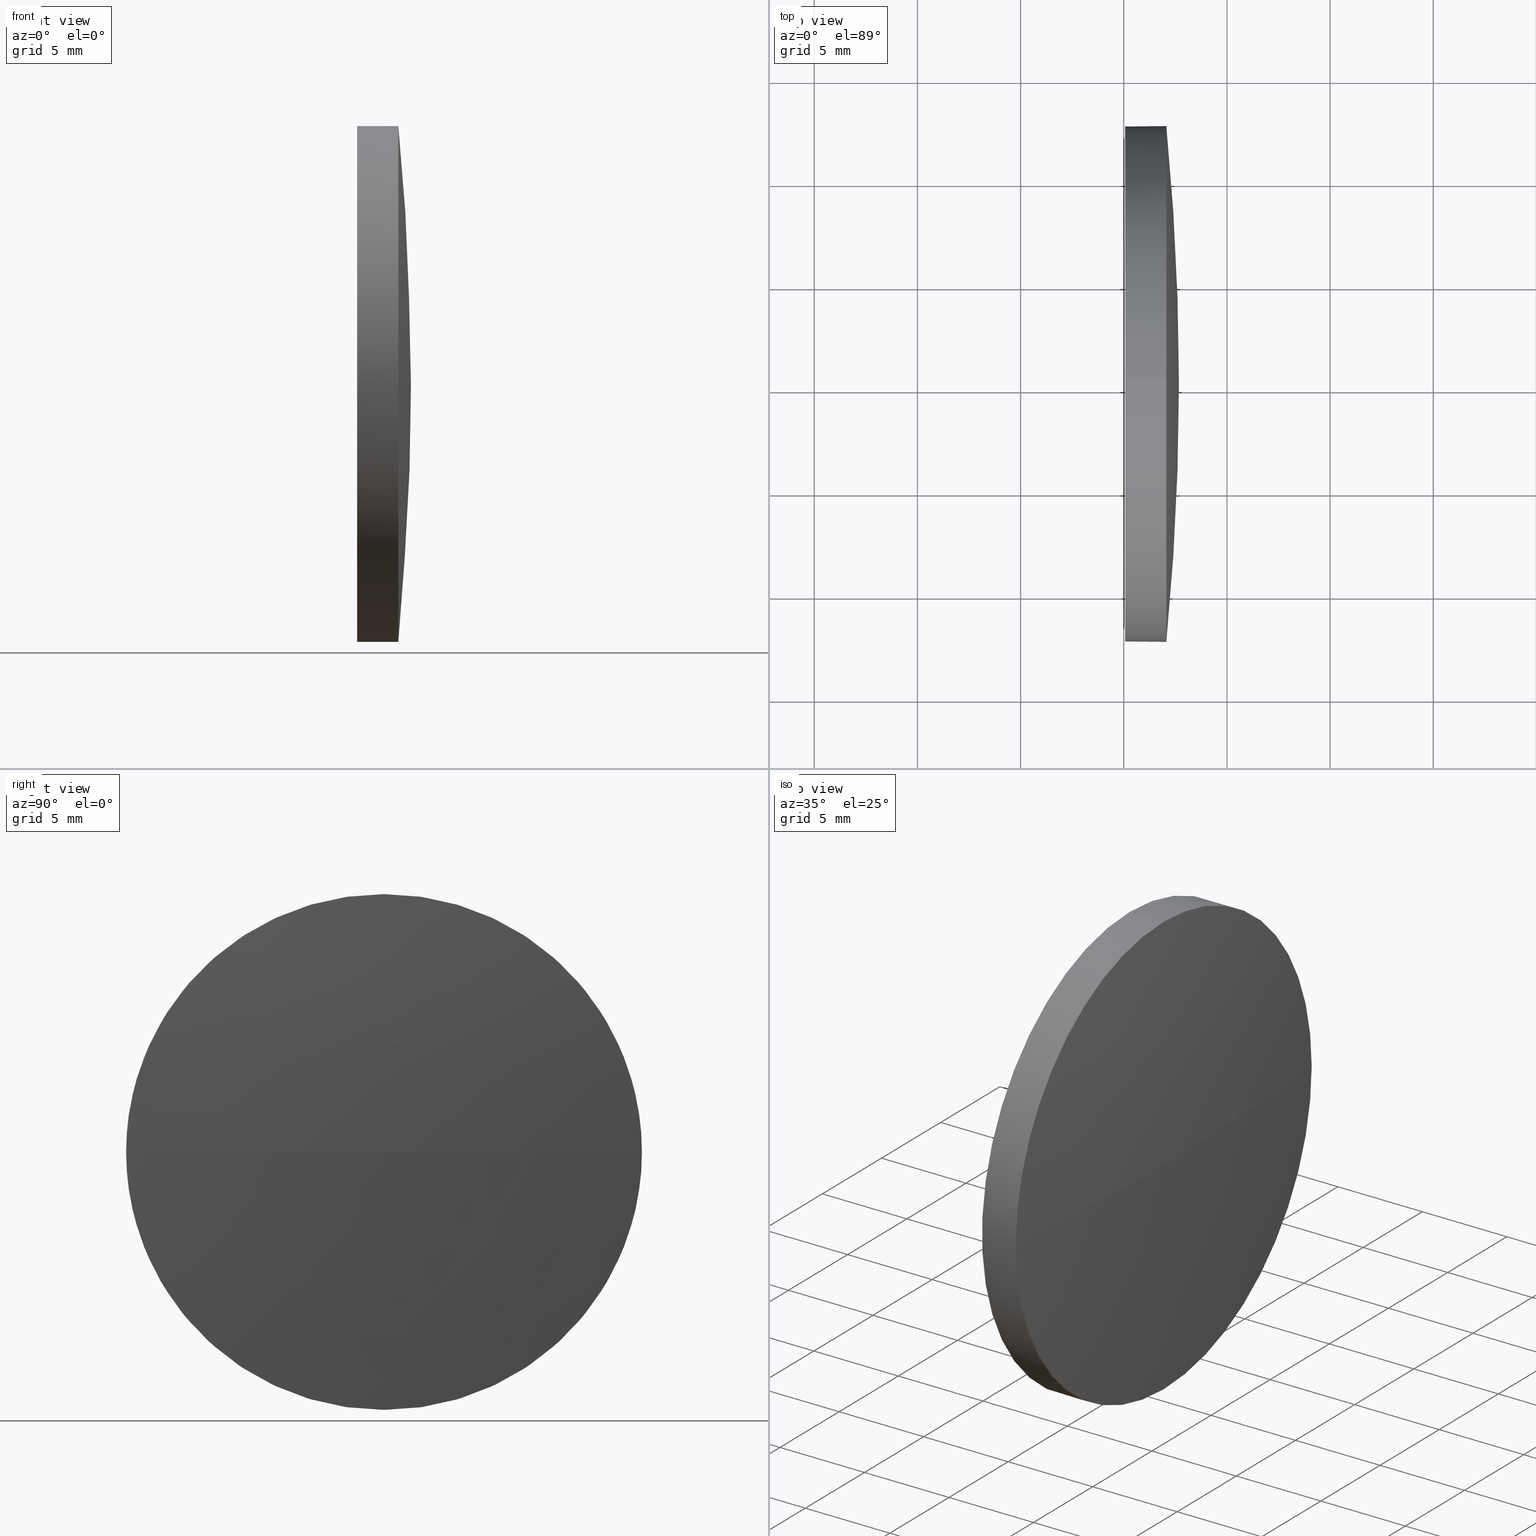
[diagram: canonical four-view strip — front | top / right | iso, engineering-drawing reading convention]
A machine part, canonical four-view strip (front | top / right | iso — engineering-drawing reading convention). The complete STEP part file that produces these views, byte-faithful:
ISO-10303-21;
HEADER;
FILE_DESCRIPTION (( 'STEP AP214' ),
    '1' );
FILE_NAME ('100220.STEP',
    '2019-05-24T01:41:00',
    ( '' ),
    ( '' ),
    'SwSTEP 2.0',
    'SolidWorks 2016',
    '' );
FILE_SCHEMA (( 'AUTOMOTIVE_DESIGN' ));
ENDSEC;

DATA;
#1 = FILL_AREA_STYLE_COLOUR ( '', #43 ) ;
#2 =( GEOMETRIC_REPRESENTATION_CONTEXT ( 3 ) GLOBAL_UNCERTAINTY_ASSIGNED_CONTEXT ( ( #12 ) ) GLOBAL_UNIT_ASSIGNED_CONTEXT ( ( #175, #141, #57 ) ) REPRESENTATION_CONTEXT ( 'NONE', 'WORKASPACE' ) );
#3 = SURFACE_SIDE_STYLE ('',( #140 ) ) ;
#4 = CARTESIAN_POINT ( 'NONE',  ( 397.0637823262245500, 95.20191544312206100, 0.0000000000000000000 ) ) ;
#5 = AXIS2_PLACEMENT_3D ( 'NONE', #177, #33, #85 ) ;
#6 = DIRECTION ( 'NONE',  ( -1.000000000000000000, -0.0000000000000000000, -0.0000000000000000000 ) ) ;
#7 = CARTESIAN_POINT ( 'NONE',  ( 269.2950118344210800, 95.20191544312194800, 0.0000000000000000000 ) ) ;
#8 = CYLINDRICAL_SURFACE ( 'NONE', #35, 12.49999999999999600 ) ;
#9 = CIRCLE ( 'NONE', #5, 12.49999999999999600 ) ;
#10 = DIRECTION ( 'NONE',  ( -0.0000000000000000000, 0.0000000000000000000, -1.000000000000000000 ) ) ;
#11 = FACE_OUTER_BOUND ( 'NONE', #139, .T. ) ;
#12 = UNCERTAINTY_MEASURE_WITH_UNIT (LENGTH_MEASURE( 1.000000000000000100E-005 ), #175, 'distance_accuracy_value', 'NONE');
#13 = EDGE_CURVE ( 'NONE', #52, #54, #84, .T. ) ;
#14 = EDGE_LOOP ( 'NONE', ( #171, #180 ) ) ;
#15 = AXIS2_PLACEMENT_3D ( 'NONE', #145, #6, #131 ) ;
#16 = FACE_OUTER_BOUND ( 'NONE', #174, .T. ) ;
#17 = AXIS2_PLACEMENT_3D ( 'NONE', #151, #94, #22 ) ;
#18 =( NAMED_UNIT ( * ) SI_UNIT ( $, .STERADIAN. ) SOLID_ANGLE_UNIT ( ) );
#19 = AXIS2_PLACEMENT_3D ( 'NONE', #167, #10, #104 ) ;
#20 = VERTEX_POINT ( 'NONE', #36 ) ;
#21 = CYLINDRICAL_SURFACE ( 'NONE', #15, 12.49999999999999600 ) ;
#22 = DIRECTION ( 'NONE',  ( 1.000000000000000000, 0.0000000000000000000, 0.0000000000000000000 ) ) ;
#23 = DIRECTION ( 'NONE',  ( 0.0000000000000000000, 0.0000000000000000000, 1.000000000000000000 ) ) ;
#24 = CARTESIAN_POINT ( 'NONE',  ( 393.0346747477875600, 95.20191544312206100, 0.0000000000000000000 ) ) ;
#25 =( NAMED_UNIT ( * ) SI_UNIT ( $, .STERADIAN. ) SOLID_ANGLE_UNIT ( ) );
#26 = ORIENTED_EDGE ( 'NONE', *, *, #102, .F. ) ;
#27 = CARTESIAN_POINT ( 'NONE',  ( 397.0637823262245500, 95.20191544312206100, 0.0000000000000000000 ) ) ;
#28 = PRODUCT_DEFINITION_FORMATION_WITH_SPECIFIED_SOURCE ( '�κ�', '', #172, .NOT_KNOWN. ) ;
#29 = AXIS2_PLACEMENT_3D ( 'NONE', #7, #135, #133 ) ;
#30 = PRODUCT_CONTEXT ( 'NONE', #129, 'mechanical' ) ;
#31 = AXIS2_PLACEMENT_3D ( 'NONE', #163, #77, #91 ) ;
#32 = DIRECTION ( 'NONE',  ( 0.0000000000000000000, 1.000000000000000000, 0.0000000000000000000 ) ) ;
#33 = DIRECTION ( 'NONE',  ( -1.000000000000000000, -0.0000000000000000000, -0.0000000000000000000 ) ) ;
#34 = CARTESIAN_POINT ( 'NONE',  ( 397.0637823262245500, 82.70191544312200400, -1.530808498934184800E-015 ) ) ;
#35 = AXIS2_PLACEMENT_3D ( 'NONE', #24, #130, #61 ) ;
#36 = CARTESIAN_POINT ( 'NONE',  ( 397.0637823262245500, 107.7019154431220200, 0.0000000000000000000 ) ) ;
#37 = DIRECTION ( 'NONE',  ( 0.0000000000000000000, 0.0000000000000000000, 1.000000000000000000 ) ) ;
#38 = EDGE_LOOP ( 'NONE', ( #83, #184, #80, #62, #148 ) ) ;
#39 =( NAMED_UNIT ( * ) PLANE_ANGLE_UNIT ( ) SI_UNIT ( $, .RADIAN. ) );
#40 = CIRCLE ( 'NONE', #59, 12.49999999999999600 ) ;
#41 = ORIENTED_EDGE ( 'NONE', *, *, #134, .T. ) ;
#42 = PRESENTATION_STYLE_ASSIGNMENT (( #100 ) ) ;
#43 = COLOUR_RGB ( '',1.000000000000000000, 1.000000000000000000, 1.000000000000000000 ) ;
#44 = ORIENTED_EDGE ( 'NONE', *, *, #164, .T. ) ;
#45 = APPLICATION_CONTEXT ( 'automotive_design' ) ;
#46 = SURFACE_SIDE_STYLE ('',( #144 ) ) ;
#47 = CIRCLE ( 'NONE', #113, 128.3787704918035200 ) ;
#48 = DIRECTION ( 'NONE',  ( 0.0000000000000000000, 1.000000000000000000, 1.224646799147353200E-016 ) ) ;
#49 = CARTESIAN_POINT ( 'NONE',  ( 395.0637823262245500, 95.20191544312206100, 12.49999999999999600 ) ) ;
#50 = VERTEX_POINT ( 'NONE', #143 ) ;
#51 = PRESENTATION_LAYER_ASSIGNMENT (  '', '', ( #79 ) ) ;
#52 = VERTEX_POINT ( 'NONE', #157 ) ;
#53 = UNCERTAINTY_MEASURE_WITH_UNIT (LENGTH_MEASURE( 1.000000000000000100E-005 ), #162, 'distance_accuracy_value', 'NONE');
#54 = VERTEX_POINT ( 'NONE', #34 ) ;
#55 = CLOSED_SHELL ( 'NONE', ( #58, #142, #107, #128, #70 ) ) ;
#56 = SHAPE_DEFINITION_REPRESENTATION ( #92, #138 ) ;
#57 =( NAMED_UNIT ( * ) SI_UNIT ( $, .STERADIAN. ) SOLID_ANGLE_UNIT ( ) );
#58 = ADVANCED_FACE ( 'NONE', ( #16 ), #21, .T. ) ;
#59 = AXIS2_PLACEMENT_3D ( 'NONE', #99, #176, #23 ) ;
#60 = DIRECTION ( 'NONE',  ( 0.0000000000000000000, 0.0000000000000000000, 1.000000000000000000 ) ) ;
#61 = DIRECTION ( 'NONE',  ( 0.0000000000000000000, 0.0000000000000000000, 1.000000000000000000 ) ) ;
#62 = ORIENTED_EDGE ( 'NONE', *, *, #186, .T. ) ;
#63 =( GEOMETRIC_REPRESENTATION_CONTEXT ( 3 ) GLOBAL_UNCERTAINTY_ASSIGNED_CONTEXT ( ( #53 ) ) GLOBAL_UNIT_ASSIGNED_CONTEXT ( ( #162, #150, #25 ) ) REPRESENTATION_CONTEXT ( 'NONE', 'WORKASPACE' ) );
#64 = PRODUCT_DEFINITION_CONTEXT ( 'detailed design', #45, 'design' ) ;
#65 = PRODUCT_DEFINITION ( 'δ֪', '', #28, #64 ) ;
#66 = VECTOR ( 'NONE', #117, 1000.000000000000000 ) ;
#67 = AXIS2_PLACEMENT_3D ( 'NONE', #98, #132, #111 ) ;
#68 = VERTEX_POINT ( 'NONE', #49 ) ;
#69 = COLOUR_RGB ( '',1.000000000000000000, 1.000000000000000000, 1.000000000000000000 ) ;
#70 = ADVANCED_FACE ( 'NONE', ( #116 ), #76, .F. ) ;
#71 = DIRECTION ( 'NONE',  ( -1.000000000000000000, -0.0000000000000000000, -0.0000000000000000000 ) ) ;
#72 = CIRCLE ( 'NONE', #146, 12.49999999999999600 ) ;
#73 = FILL_AREA_STYLE_COLOUR ( '', #69 ) ;
#74 = CARTESIAN_POINT ( 'NONE',  ( 397.0637823262245500, 95.20191544312206100, 12.49999999999999600 ) ) ;
#75 = LINE ( 'NONE', #166, #66 ) ;
#76 = PLANE ( 'NONE',  #67 ) ;
#77 = DIRECTION ( 'NONE',  ( -1.000000000000000000, -0.0000000000000000000, -0.0000000000000000000 ) ) ;
#78 = DIRECTION ( 'NONE',  ( -1.000000000000000000, -0.0000000000000000000, -0.0000000000000000000 ) ) ;
#79 = STYLED_ITEM ( 'NONE', ( #42 ), #123 ) ;
#80 = ORIENTED_EDGE ( 'NONE', *, *, #110, .T. ) ;
#81 = SPHERICAL_SURFACE ( 'NONE', #19, 128.3787704918035200 ) ;
#82 = LINE ( 'NONE', #88, #149 ) ;
#83 = ORIENTED_EDGE ( 'NONE', *, *, #168, .F. ) ;
#84 = CIRCLE ( 'NONE', #185, 12.49999999999999600 ) ;
#85 = DIRECTION ( 'NONE',  ( 0.0000000000000000000, 0.0000000000000000000, 1.000000000000000000 ) ) ;
#86 = ORIENTED_EDGE ( 'NONE', *, *, #186, .F. ) ;
#87 =( GEOMETRIC_REPRESENTATION_CONTEXT ( 3 ) GLOBAL_UNCERTAINTY_ASSIGNED_CONTEXT ( ( #119 ) ) GLOBAL_UNIT_ASSIGNED_CONTEXT ( ( #115, #39, #18 ) ) REPRESENTATION_CONTEXT ( 'NONE', 'WORKASPACE' ) );
#88 = CARTESIAN_POINT ( 'NONE',  ( 393.0346747477875600, 95.20191544312206100, -12.49999999999999600 ) ) ;
#89 = ORIENTED_EDGE ( 'NONE', *, *, #110, .F. ) ;
#90 = CARTESIAN_POINT ( 'NONE',  ( 395.0637823262245500, 95.20191544312206100, 0.0000000000000000000 ) ) ;
#91 = DIRECTION ( 'NONE',  ( 0.0000000000000000000, 0.0000000000000000000, 1.000000000000000000 ) ) ;
#92 = PRODUCT_DEFINITION_SHAPE ( 'NONE', 'NONE',  #65 ) ;
#93 = ORIENTED_EDGE ( 'NONE', *, *, #13, .F. ) ;
#94 = DIRECTION ( 'NONE',  ( 0.0000000000000000000, 0.0000000000000000000, 1.000000000000000000 ) ) ;
#95 = ORIENTED_EDGE ( 'NONE', *, *, #134, .F. ) ;
#96 = FILL_AREA_STYLE ('',( #1 ) ) ;
#97 = DIRECTION ( 'NONE',  ( 0.0000000000000000000, 1.224646799147353200E-016, -1.000000000000000000 ) ) ;
#98 = CARTESIAN_POINT ( 'NONE',  ( 395.0637823262245500, 95.20191544312206100, 0.0000000000000000000 ) ) ;
#99 = CARTESIAN_POINT ( 'NONE',  ( 397.0637823262245500, 95.20191544312206100, 0.0000000000000000000 ) ) ;
#100 = SURFACE_STYLE_USAGE ( .BOTH. , #3 ) ;
#101 = DIRECTION ( 'NONE',  ( -1.000000000000000000, -0.0000000000000000000, -0.0000000000000000000 ) ) ;
#102 = EDGE_CURVE ( 'NONE', #137, #54, #47, .T. ) ;
#103 = CIRCLE ( 'NONE', #136, 12.49999999999999600 ) ;
#104 = DIRECTION ( 'NONE',  ( 0.0000000000000000000, 1.000000000000000000, 0.0000000000000000000 ) ) ;
#105 = STYLED_ITEM ( 'NONE', ( #183 ), #138 ) ;
#106 = ORIENTED_EDGE ( 'NONE', *, *, #121, .F. ) ;
#107 = ADVANCED_FACE ( 'NONE', ( #156 ), #154, .T. ) ;
#108 = CIRCLE ( 'NONE', #31, 12.49999999999999600 ) ;
#109 = APPLICATION_PROTOCOL_DEFINITION ( 'draft international standard', 'automotive_design', 1998, #129 ) ;
#110 = EDGE_CURVE ( 'NONE', #54, #122, #40, .T. ) ;
#111 = DIRECTION ( 'NONE',  ( 0.0000000000000000000, 0.0000000000000000000, -1.000000000000000000 ) ) ;
#112 = CARTESIAN_POINT ( 'NONE',  ( 269.2950118344210800, 95.20191544312194800, 0.0000000000000000000 ) ) ;
#113 = AXIS2_PLACEMENT_3D ( 'NONE', #112, #97, #48 ) ;
#114 = ORIENTED_EDGE ( 'NONE', *, *, #168, .T. ) ;
#115 =( LENGTH_UNIT ( ) NAMED_UNIT ( * ) SI_UNIT ( .MILLI., .METRE. ) );
#116 = FACE_OUTER_BOUND ( 'NONE', #14, .T. ) ;
#117 = DIRECTION ( 'NONE',  ( -1.000000000000000000, -0.0000000000000000000, -0.0000000000000000000 ) ) ;
#118 = PRODUCT_RELATED_PRODUCT_CATEGORY ( 'part', '', ( #172 ) ) ;
#119 = UNCERTAINTY_MEASURE_WITH_UNIT (LENGTH_MEASURE( 1.000000000000000100E-005 ), #115, 'distance_accuracy_value', 'NONE');
#120 = ORIENTED_EDGE ( 'NONE', *, *, #173, .F. ) ;
#121 = EDGE_CURVE ( 'NONE', #68, #50, #9, .T. ) ;
#122 = VERTEX_POINT ( 'NONE', #74 ) ;
#123 = MANIFOLD_SOLID_BREP ( '��ת1', #55 ) ;
#124 = SURFACE_STYLE_USAGE ( .BOTH. , #46 ) ;
#125 = MECHANICAL_DESIGN_GEOMETRIC_PRESENTATION_REPRESENTATION (  '', ( #79 ), #63 ) ;
#126 = APPLICATION_PROTOCOL_DEFINITION ( 'draft international standard', 'automotive_design', 1998, #45 ) ;
#127 = ORIENTED_EDGE ( 'NONE', *, *, #102, .T. ) ;
#128 = ADVANCED_FACE ( 'NONE', ( #169 ), #8, .T. ) ;
#129 = APPLICATION_CONTEXT ( 'automotive_design' ) ;
#130 = DIRECTION ( 'NONE',  ( -1.000000000000000000, -0.0000000000000000000, -0.0000000000000000000 ) ) ;
#131 = DIRECTION ( 'NONE',  ( 0.0000000000000000000, 0.0000000000000000000, 1.000000000000000000 ) ) ;
#132 = DIRECTION ( 'NONE',  ( 1.000000000000000000, 0.0000000000000000000, 0.0000000000000000000 ) ) ;
#133 = DIRECTION ( 'NONE',  ( 1.000000000000000000, 0.0000000000000000000, 0.0000000000000000000 ) ) ;
#134 = EDGE_CURVE ( 'NONE', #20, #52, #108, .T. ) ;
#135 = DIRECTION ( 'NONE',  ( -0.0000000000000000000, 0.0000000000000000000, 1.000000000000000000 ) ) ;
#136 = AXIS2_PLACEMENT_3D ( 'NONE', #27, #78, #179 ) ;
#137 = VERTEX_POINT ( 'NONE', #181 ) ;
#138 = ADVANCED_BREP_SHAPE_REPRESENTATION ( '100220', ( #123, #17 ), #87 ) ;
#139 = EDGE_LOOP ( 'NONE', ( #120, #127, #93, #95 ) ) ;
#140 = SURFACE_STYLE_FILL_AREA ( #158 ) ;
#141 =( NAMED_UNIT ( * ) PLANE_ANGLE_UNIT ( ) SI_UNIT ( $, .RADIAN. ) );
#142 = ADVANCED_FACE ( 'NONE', ( #11 ), #81, .T. ) ;
#143 = CARTESIAN_POINT ( 'NONE',  ( 395.0637823262245500, 95.20191544312206100, -12.49999999999999600 ) ) ;
#144 = SURFACE_STYLE_FILL_AREA ( #96 ) ;
#145 = CARTESIAN_POINT ( 'NONE',  ( 393.0346747477875600, 95.20191544312206100, 0.0000000000000000000 ) ) ;
#146 = AXIS2_PLACEMENT_3D ( 'NONE', #90, #101, #37 ) ;
#147 = DIRECTION ( 'NONE',  ( -1.000000000000000000, -0.0000000000000000000, -0.0000000000000000000 ) ) ;
#148 = ORIENTED_EDGE ( 'NONE', *, *, #153, .F. ) ;
#149 = VECTOR ( 'NONE', #147, 1000.000000000000000 ) ;
#150 =( NAMED_UNIT ( * ) PLANE_ANGLE_UNIT ( ) SI_UNIT ( $, .RADIAN. ) );
#151 = CARTESIAN_POINT ( 'NONE',  ( 0.0000000000000000000, 0.0000000000000000000, 0.0000000000000000000 ) ) ;
#152 = CIRCLE ( 'NONE', #29, 128.3787704918035200 ) ;
#153 = EDGE_CURVE ( 'NONE', #50, #68, #72, .T. ) ;
#154 = SPHERICAL_SURFACE ( 'NONE', #182, 128.3787704918035200 ) ;
#155 = EDGE_LOOP ( 'NONE', ( #26, #165, #161, #89 ) ) ;
#156 = FACE_OUTER_BOUND ( 'NONE', #155, .T. ) ;
#157 = CARTESIAN_POINT ( 'NONE',  ( 397.0637823262245500, 95.20191544312206100, -12.49999999999999600 ) ) ;
#158 = FILL_AREA_STYLE ('',( #73 ) ) ;
#159 = DIRECTION ( 'NONE',  ( -0.0000000000000000000, 0.0000000000000000000, -1.000000000000000000 ) ) ;
#160 = CARTESIAN_POINT ( 'NONE',  ( 269.2950118344210800, 95.20191544312194800, 0.0000000000000000000 ) ) ;
#161 = ORIENTED_EDGE ( 'NONE', *, *, #164, .F. ) ;
#162 =( LENGTH_UNIT ( ) NAMED_UNIT ( * ) SI_UNIT ( .MILLI., .METRE. ) );
#163 = CARTESIAN_POINT ( 'NONE',  ( 397.0637823262245500, 95.20191544312206100, 0.0000000000000000000 ) ) ;
#164 = EDGE_CURVE ( 'NONE', #122, #20, #103, .T. ) ;
#165 = ORIENTED_EDGE ( 'NONE', *, *, #173, .T. ) ;
#166 = CARTESIAN_POINT ( 'NONE',  ( 393.0346747477875600, 95.20191544312206100, 12.49999999999999600 ) ) ;
#167 = CARTESIAN_POINT ( 'NONE',  ( 269.2950118344210800, 95.20191544312194800, 0.0000000000000000000 ) ) ;
#168 = EDGE_CURVE ( 'NONE', #52, #50, #82, .T. ) ;
#169 = FACE_OUTER_BOUND ( 'NONE', #38, .T. ) ;
#170 = PRESENTATION_LAYER_ASSIGNMENT (  '', '', ( #105 ) ) ;
#171 = ORIENTED_EDGE ( 'NONE', *, *, #121, .T. ) ;
#172 = PRODUCT ( '100220', '100220', '', ( #30 ) ) ;
#173 = EDGE_CURVE ( 'NONE', #137, #20, #152, .T. ) ;
#174 = EDGE_LOOP ( 'NONE', ( #41, #114, #106, #86, #44 ) ) ;
#175 =( LENGTH_UNIT ( ) NAMED_UNIT ( * ) SI_UNIT ( .MILLI., .METRE. ) );
#176 = DIRECTION ( 'NONE',  ( -1.000000000000000000, -0.0000000000000000000, -0.0000000000000000000 ) ) ;
#177 = CARTESIAN_POINT ( 'NONE',  ( 395.0637823262245500, 95.20191544312206100, 0.0000000000000000000 ) ) ;
#178 = MECHANICAL_DESIGN_GEOMETRIC_PRESENTATION_REPRESENTATION (  '', ( #105 ), #2 ) ;
#179 = DIRECTION ( 'NONE',  ( 0.0000000000000000000, 0.0000000000000000000, 1.000000000000000000 ) ) ;
#180 = ORIENTED_EDGE ( 'NONE', *, *, #153, .T. ) ;
#181 = CARTESIAN_POINT ( 'NONE',  ( 397.6737823262245700, 95.20191544312196200, 0.0000000000000000000 ) ) ;
#182 = AXIS2_PLACEMENT_3D ( 'NONE', #160, #159, #32 ) ;
#183 = PRESENTATION_STYLE_ASSIGNMENT (( #124 ) ) ;
#184 = ORIENTED_EDGE ( 'NONE', *, *, #13, .T. ) ;
#185 = AXIS2_PLACEMENT_3D ( 'NONE', #4, #71, #60 ) ;
#186 = EDGE_CURVE ( 'NONE', #122, #68, #75, .T. ) ;
ENDSEC;
END-ISO-10303-21;
